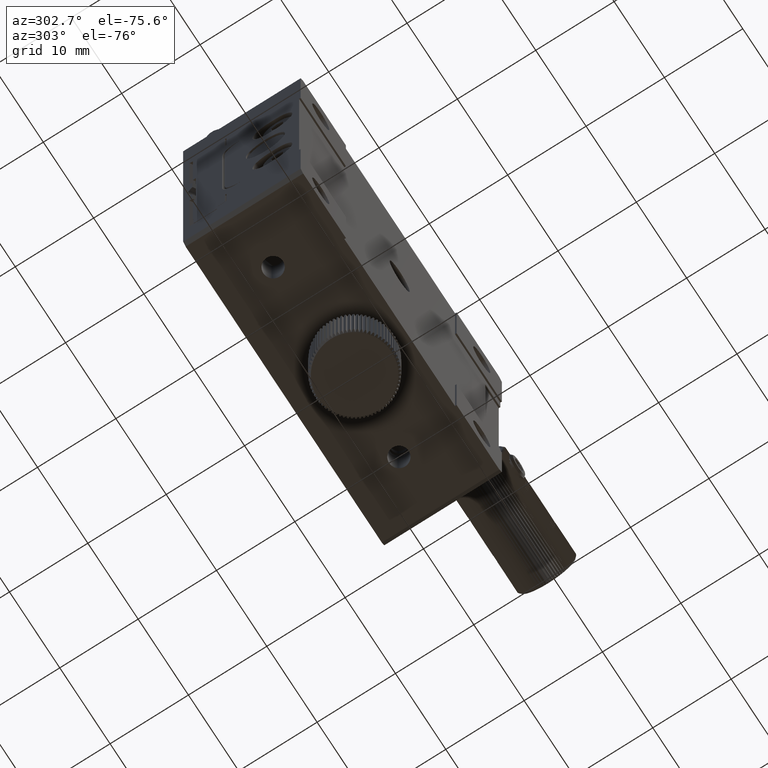
[diagram: clean part render]
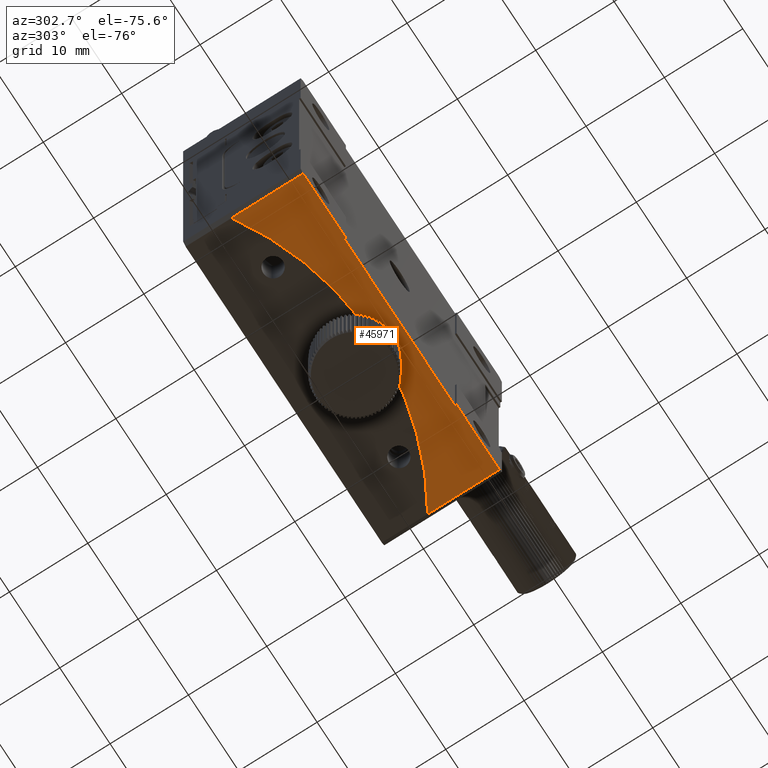
[diagram: same view with one face highlighted and labeled with its STEP entity id]
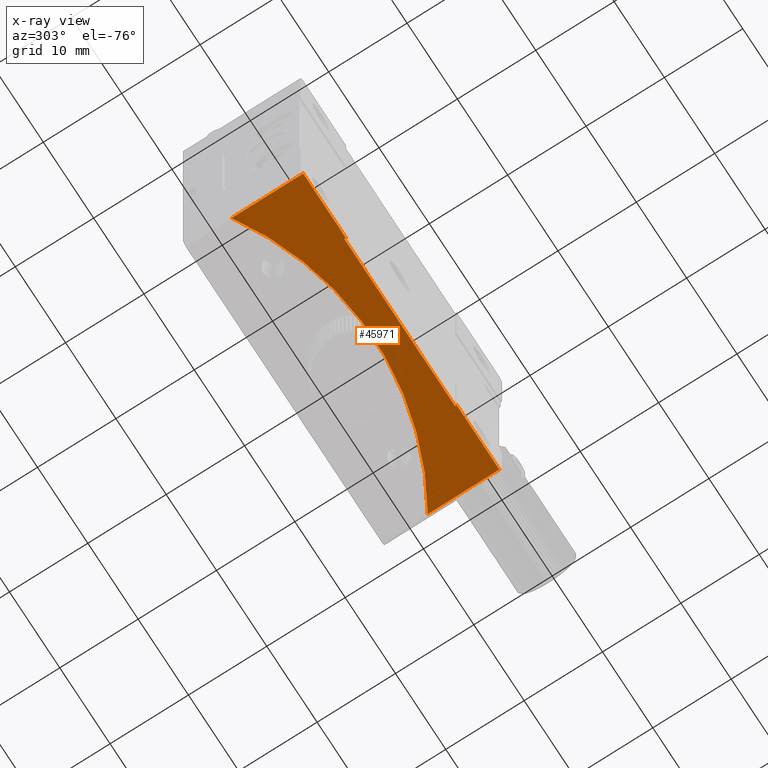
[diagram: x-ray of the same camera — body ghosted, the highlighted face saturated]
A machine part, auxiliary view. The second image highlights one B-rep face of the part: STEP entity #45971.
The next image is the same camera in x-ray: the body ghosted, the highlighted face saturated — about 3% of this face is hidden behind the body in this view.
In plain terms, the highlighted planar face has unit normal (0, 0, 1).
Its self-contained STEP definition (entity closure, byte-faithful):
#95 = CARTESIAN_POINT ( 'NONE',  ( 0.000000000000000000, 0.000000000000000000, -20.00000000000000000 ) ) ;
#289 = EDGE_CURVE ( 'NONE', #3852, #32656, #63677, .T. ) ;
#3852 = VERTEX_POINT ( 'NONE', #14434 ) ;
#5079 = CARTESIAN_POINT ( 'NONE',  ( 19.50000000000000711, -40.00000000000000000, -20.00000000000000000 ) ) ;
#5626 = DIRECTION ( 'NONE',  ( -0.000000000000000000, 1.000000000000000000, 0.000000000000000000 ) ) ;
#8591 = LINE ( 'NONE', #46626, #45830 ) ;
#8990 = CARTESIAN_POINT ( 'NONE',  ( -10.99999999999999645, -39.80000000000000426, -20.00000000000000355 ) ) ;
#11793 = ORIENTED_EDGE ( 'NONE', *, *, #33273, .F. ) ;
#12163 = EDGE_CURVE ( 'NONE', #32680, #38626, #37947, .T. ) ;
#12335 = CARTESIAN_POINT ( 'NONE',  ( 0.000000000000000000, 0.000000000000000000, -20.00000000000000000 ) ) ;
#13016 = VECTOR ( 'NONE', #27988, 1000.000000000000000 ) ;
#13032 = AXIS2_PLACEMENT_3D ( 'NONE', #12335, #21677, #61004 ) ;
#14434 = CARTESIAN_POINT ( 'NONE',  ( 11.00000000000000533, -39.80000000000000426, -20.00000000000000355 ) ) ;
#18496 = EDGE_CURVE ( 'NONE', #20706, #32680, #53960, .T. ) ;
#20706 = VERTEX_POINT ( 'NONE', #41027 ) ;
#21677 = DIRECTION ( 'NONE',  ( -0.000000000000000000, -0.000000000000000000, -1.000000000000000000 ) ) ;
#22161 = DIRECTION ( 'NONE',  ( 1.000000000000000000, 0.000000000000000000, 0.000000000000000000 ) ) ;
#24274 = DIRECTION ( 'NONE',  ( 0.000000000000000000, 0.000000000000000000, 1.000000000000000000 ) ) ;
#24968 = VECTOR ( 'NONE', #49127, 1000.000000000000000 ) ;
#24983 = CARTESIAN_POINT ( 'NONE',  ( 19.50000000000000711, 0.000000000000000000, -20.00000000000000000 ) ) ;
#26244 = AXIS2_PLACEMENT_3D ( 'NONE', #95, #24274, #34582 ) ;
#27212 = FACE_OUTER_BOUND ( 'NONE', #57257, .T. ) ;
#27988 = DIRECTION ( 'NONE',  ( 1.000000000000000000, 0.000000000000000000, -0.000000000000000000 ) ) ;
#29483 = CARTESIAN_POINT ( 'NONE',  ( -19.50000000000000711, 0.000000000000000000, -20.00000000000000000 ) ) ;
#29532 = DIRECTION ( 'NONE',  ( -0.000000000000000000, -1.000000000000000000, 0.000000000000000000 ) ) ;
#30116 = VECTOR ( 'NONE', #31498, 1000.000000000000000 ) ;
#31442 = EDGE_CURVE ( 'NONE', #57481, #20706, #58288, .T. ) ;
#31498 = DIRECTION ( 'NONE',  ( 1.000000000000000000, 0.000000000000000000, -0.000000000000000000 ) ) ;
#32656 = VERTEX_POINT ( 'NONE', #62597 ) ;
#32672 = VECTOR ( 'NONE', #29532, 1000.000000000000000 ) ;
#32680 = VERTEX_POINT ( 'NONE', #49351 ) ;
#33273 = EDGE_CURVE ( 'NONE', #55912, #57481, #55276, .T. ) ;
#33397 = CARTESIAN_POINT ( 'NONE',  ( 11.00000000000000533, -39.80000000000000426, -20.00000000000000000 ) ) ;
#34582 = DIRECTION ( 'NONE',  ( 1.000000000000000000, 0.000000000000000000, -0.000000000000000000 ) ) ;
#34992 = CARTESIAN_POINT ( 'NONE',  ( -10.99999999999999645, 0.000000000000000000, -20.00000000000000000 ) ) ;
#37947 = LINE ( 'NONE', #57316, #13016 ) ;
#38626 = VERTEX_POINT ( 'NONE', #53055 ) ;
#39180 = DIRECTION ( 'NONE',  ( -0.000000000000000000, 1.000000000000000000, 0.000000000000000000 ) ) ;
#39632 = EDGE_CURVE ( 'NONE', #32656, #55912, #51482, .T. ) ;
#39812 = LINE ( 'NONE', #34992, #40861 ) ;
#40861 = VECTOR ( 'NONE', #39180, 1000.000000000000000 ) ;
#41027 = CARTESIAN_POINT ( 'NONE',  ( -19.50000000000001066, -30.85449724108302405, -20.00000000000000355 ) ) ;
#41905 = ORIENTED_EDGE ( 'NONE', *, *, #44727, .F. ) ;
#44345 = ORIENTED_EDGE ( 'NONE', *, *, #289, .F. ) ;
#44701 = CARTESIAN_POINT ( 'NONE',  ( 19.50000000000001066, -30.85449724108302405, -20.00000000000000355 ) ) ;
#44727 = EDGE_CURVE ( 'NONE', #38626, #56038, #39812, .T. ) ;
#45146 = ORIENTED_EDGE ( 'NONE', *, *, #18496, .F. ) ;
#45830 = VECTOR ( 'NONE', #22161, 1000.000000000000000 ) ;
#45971 = ADVANCED_FACE ( 'NONE', ( #27212 ), #46849, .F. ) ;
#46626 = CARTESIAN_POINT ( 'NONE',  ( 0.000000000000000000, -39.80000000000000426, -20.00000000000000355 ) ) ;
#46849 = PLANE ( 'NONE',  #26244 ) ;
#49127 = DIRECTION ( 'NONE',  ( 0.000000000000000000, -1.000000000000000000, -0.000000000000000000 ) ) ;
#49351 = CARTESIAN_POINT ( 'NONE',  ( -19.50000000000000711, -40.00000000000000000, -20.00000000000000000 ) ) ;
#51482 = LINE ( 'NONE', #51802, #30116 ) ;
#51802 = CARTESIAN_POINT ( 'NONE',  ( 0.000000000000000000, -40.00000000000000000, -20.00000000000000000 ) ) ;
#52566 = ORIENTED_EDGE ( 'NONE', *, *, #12163, .F. ) ;
#53055 = CARTESIAN_POINT ( 'NONE',  ( -10.99999999999999645, -40.00000000000000000, -20.00000000000000000 ) ) ;
#53960 = LINE ( 'NONE', #29483, #24968 ) ;
#54994 = EDGE_CURVE ( 'NONE', #56038, #3852, #8591, .T. ) ;
#55276 = LINE ( 'NONE', #24983, #58011 ) ;
#55912 = VERTEX_POINT ( 'NONE', #5079 ) ;
#56038 = VERTEX_POINT ( 'NONE', #8990 ) ;
#57257 = EDGE_LOOP ( 'NONE', ( #11793, #62029, #44345, #61046, #41905, #52566, #45146, #57513 ) ) ;
#57316 = CARTESIAN_POINT ( 'NONE',  ( 0.000000000000000000, -40.00000000000000000, -20.00000000000000000 ) ) ;
#57481 = VERTEX_POINT ( 'NONE', #44701 ) ;
#57513 = ORIENTED_EDGE ( 'NONE', *, *, #31442, .F. ) ;
#58011 = VECTOR ( 'NONE', #5626, 1000.000000000000000 ) ;
#58288 = CIRCLE ( 'NONE', #13032, 36.50000000000000711 ) ;
#61004 = DIRECTION ( 'NONE',  ( 1.000000000000000000, 0.000000000000000000, 0.000000000000000000 ) ) ;
#61046 = ORIENTED_EDGE ( 'NONE', *, *, #54994, .F. ) ;
#62029 = ORIENTED_EDGE ( 'NONE', *, *, #39632, .F. ) ;
#62597 = CARTESIAN_POINT ( 'NONE',  ( 11.00000000000000533, -40.00000000000000000, -20.00000000000000000 ) ) ;
#63677 = LINE ( 'NONE', #33397, #32672 ) ;